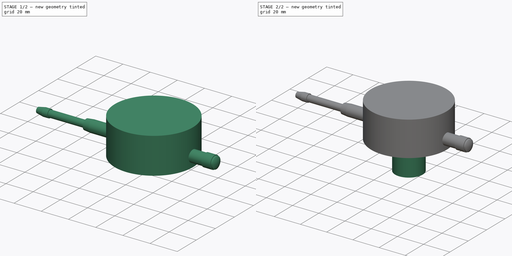
[diagram: build sequence overview — one tinted view per stage of 2, left to right]
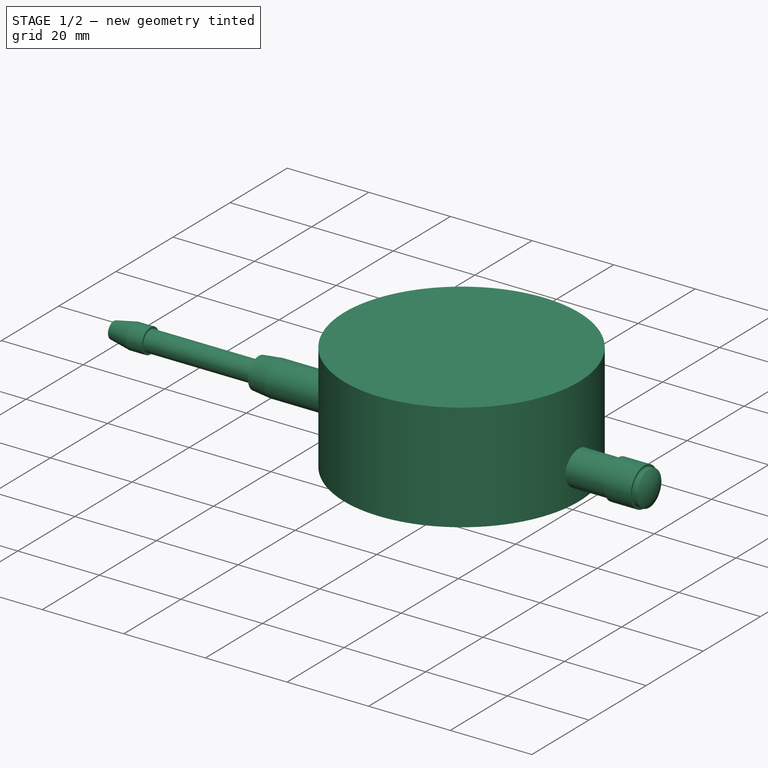
[diagram: stage 1 of 2 — iso view after this stage's code; geometry added in this stage tinted green]
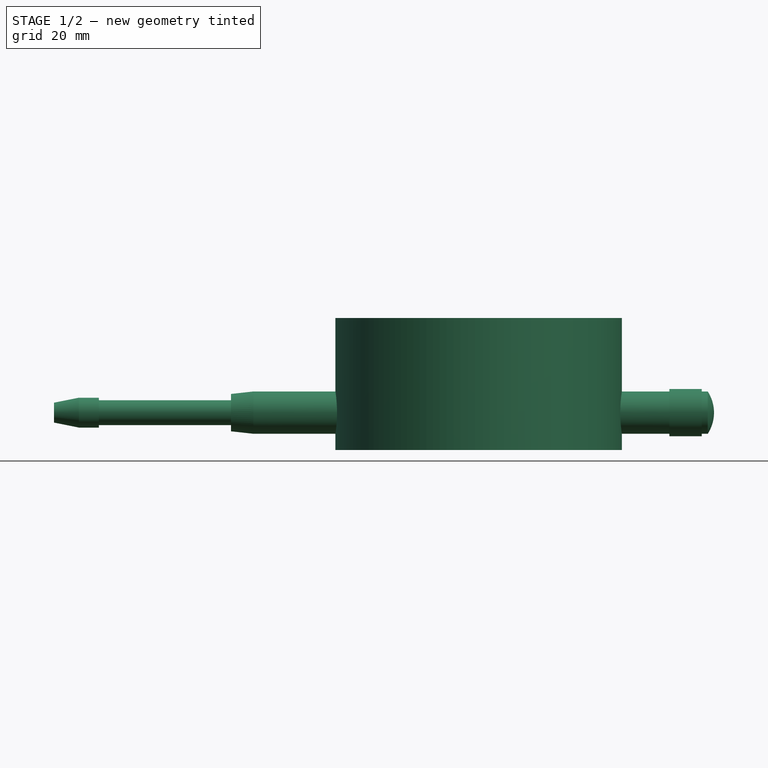
[diagram: stage 1 of 2 — front view after this stage's code; geometry added in this stage tinted green]
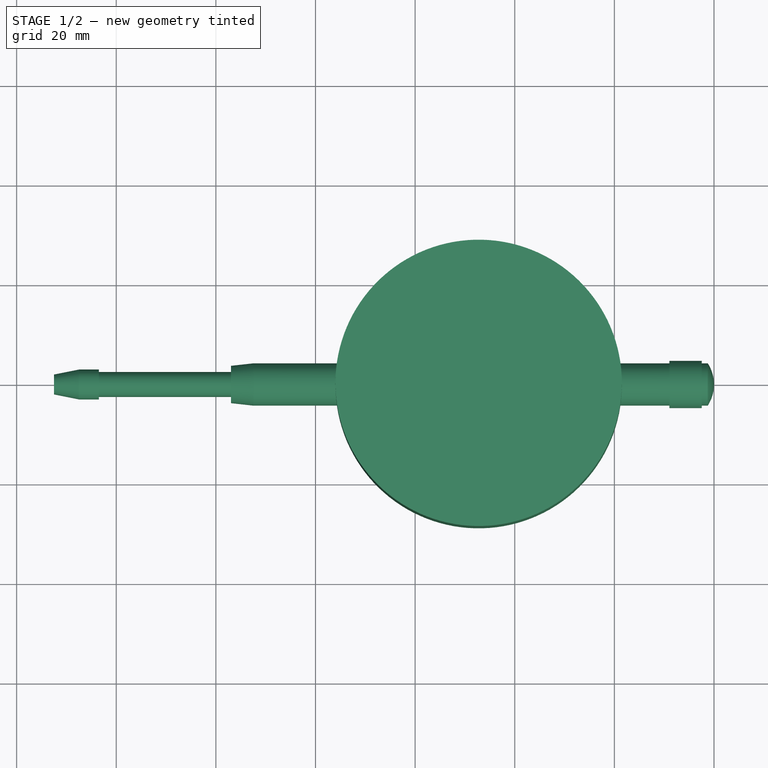
[diagram: stage 1 of 2 — top view after this stage's code; geometry added in this stage tinted green]
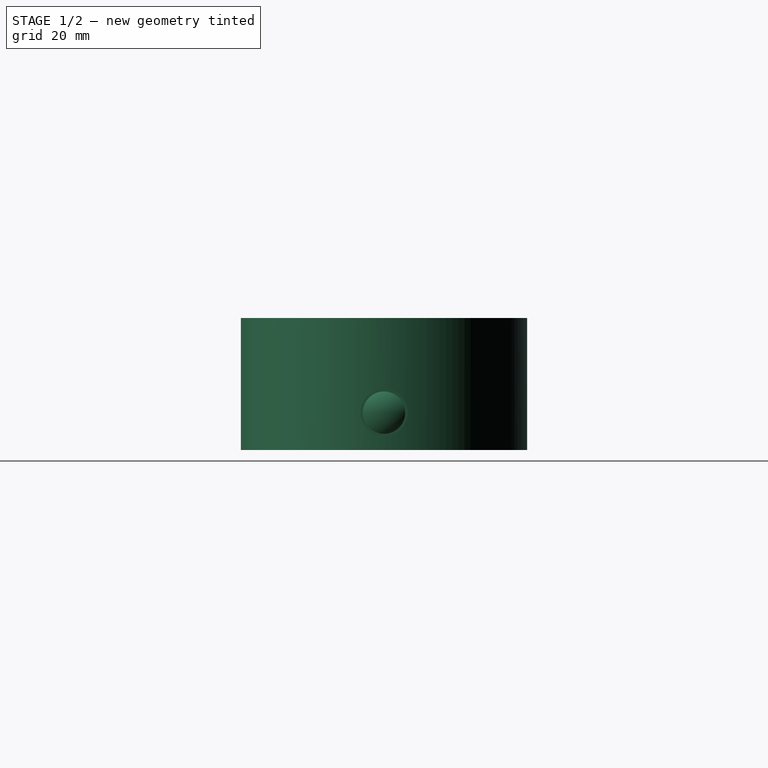
[diagram: stage 1 of 2 — right view after this stage's code; geometry added in this stage tinted green]
FCSTD DOCUMENT  (FreeCAD 0.20R29410 (Git))
Label: dialgauge2
License: All rights reserved
LicenseURL: http://en.wikipedia.org/wiki/All_rights_reserved
objects: Sketcher::SketchObject×3, PartDesign::Pad×2, PartDesign::Revolution×1, PartDesign::Body×1
note: 10 computed .brp shape members not serialized (recipe doc carries the construction recipe); baked Part::Feature solids carry a one-line shape summary decoded from their .brp

FEATURE [Sketcher::SketchObject] Sketch
  FullyConstrained = false
  MapMode = 5
  Placement = pos=(0,0,0) rot=(1,0,0;1.5708rad)
  Support = -> [XZ_Plane]
  sketch-geometry (14):
    g0: LineSegment StartX=-132.5 StartY=0 StartZ=0 EndX=0 EndY=0 EndZ=0
    g1: LineSegment StartX=-1.25317 StartY=4.25 StartZ=0 EndX=-2.46539 EndY=4.25 EndZ=0
    g2: LineSegment StartX=-2.46539 StartY=4.25 StartZ=0 EndX=-2.46539 EndY=4.75 EndZ=0
    g3: LineSegment StartX=-2.46539 StartY=4.75 StartZ=0 EndX=-8.96539 EndY=4.75 EndZ=0
    g4: LineSegment StartX=-8.96539 StartY=4.75 StartZ=0 EndX=-8.96539 EndY=4.25 EndZ=0
    g5: LineSegment StartX=-8.96539 StartY=4.25 StartZ=0 EndX=-92.4654 EndY=4.25 EndZ=0
    g6: LineSegment StartX=-92.4654 StartY=4.25 StartZ=0 EndX=-96.9654 EndY=3.75 EndZ=0
    g7: LineSegment StartX=-96.9654 StartY=3.75 StartZ=0 EndX=-96.9654 EndY=2.5 EndZ=0
    g8: LineSegment StartX=-96.9654 StartY=2.5 StartZ=0 EndX=-123.5 EndY=2.5 EndZ=0
    g9: LineSegment StartX=-123.5 StartY=2.5 StartZ=0 EndX=-123.5 EndY=3 EndZ=0
    g10: LineSegment StartX=-123.5 StartY=3 StartZ=0 EndX=-127.5 EndY=3 EndZ=0
    g11: LineSegment StartX=-127.5 StartY=3 StartZ=0 EndX=-132.5 EndY=2 EndZ=0
    g12: LineSegment StartX=-132.5 StartY=2 StartZ=0 EndX=-132.5 EndY=0 EndZ=0
    g13: ArcOfCircle CenterX=-7.83329 CenterY=0 CenterZ=0 NormalX=0 NormalY=0 NormalZ=1 AngleXU=0 Radius=7.83329 StartAngle=0 EndAngle=0.573477
  constraints (40):
    c: PointOnObject(g0,g-1)
    c: Horizontal(g1)
    c: Coincident(g1,g2)
    c: Vertical(g2)
    c: Coincident(g2,g3)
    c: Horizontal(g3)
    c: Coincident(g3,g4)
    c: Vertical(g4)
    c: Coincident(g4,g5)
    c: Horizontal(g5)
    c: Coincident(g5,g6)
    c: Coincident(g6,g7)
    c: Vertical(g7)
    c: Coincident(g7,g8)
    c: Horizontal(g8)
    c: Coincident(g8,g9)
    c: Vertical(g9)
    c: Coincident(g9,g10)
    c: Horizontal(g10)
    c: Coincident(g10,g11)
    c: Coincident(g11,g12)
    c: Coincident(g12,g0)
    c: Vertical(g12)
    c: DistanceX(g3,g3) = 6.5
    c: DistanceY(g2,g2) = 0.5
    c: Horizontal(g4,g1)
    c: DistanceY(g0,g1) = 4.25
    c: DistanceX(g5,g5) = 83.5
    c: DistanceX(g6,g5) = 4.5
    c: DistanceX(g10,g9) = 4
    c: DistanceX(g11,g10) = 5
    c: DistanceY(g0,g11) = 2
    c: DistanceY(g7,g6) = 1.25
    c: DistanceY(g0,g8) = 2.5
    c: DistanceY(g8,g9) = 0.5
    c: Coincident(g0,g-1)
    c: DistanceX(g0,g0) = 132.5
    c: Coincident(g13,g0)
    c: Coincident(g13,g1)
    c: PointOnObject(g13,g0)
FEATURE [PartDesign::Revolution] Revolution
  Angle = 360
  Axis = (1,0,0)
  Base = (0,0,0)
  Placement = pos=(0,0,0) rot=(1,0,0;1.5708rad)
  Profile = -> Sketch
  ReferenceAxis = -> Sketch [H_Axis]
FEATURE [Sketcher::SketchObject] Sketch002  label="Sketch001"
  AttachmentOffset = pos=(0,0,-7.5) rot=(0,0,1;0rad)
  FullyConstrained = false
  MapMode = 5
  Placement = pos=(0,0,-7.5) rot=(0,0,1;0rad)
  Support = -> [XY_Plane]
  sketch-geometry (2):
    g0: Circle CenterX=-47.25 CenterY=0 CenterZ=0 NormalX=0 NormalY=0 NormalZ=1 AngleXU=0 Radius=28.75
    g1: LineSegment StartX=-18.5 StartY=65.1159 StartZ=0 EndX=-18.5 EndY=-72.6335 EndZ=0
  constraints (5):
    c: PointOnObject(g0,g-1)
    c: Diameter(g0) = 57.5
    c: Vertical(g1)
    c: DistanceX(g1,g-1) = 18.5
    c: Tangent(g0,g1)
FEATURE [PartDesign::Pad] Pad
  BaseFeature = -> Revolution
  Direction = (0,0,1)
  Length = 26.5
  Length2 = 10
  Placement = pos=(0,0,0) rot=(1,0,0;1.5708rad)
  Profile = -> Sketch002
  ReferenceAxis = -> Sketch002 [N_Axis]
  Type = 0
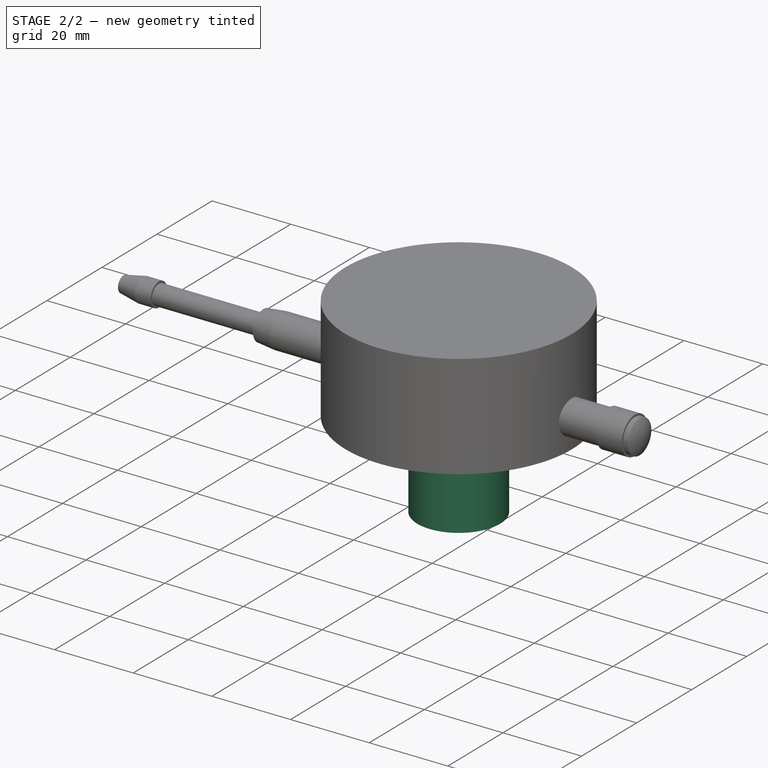
[diagram: stage 2 of 2 — iso view after this stage's code; geometry added in this stage tinted green]
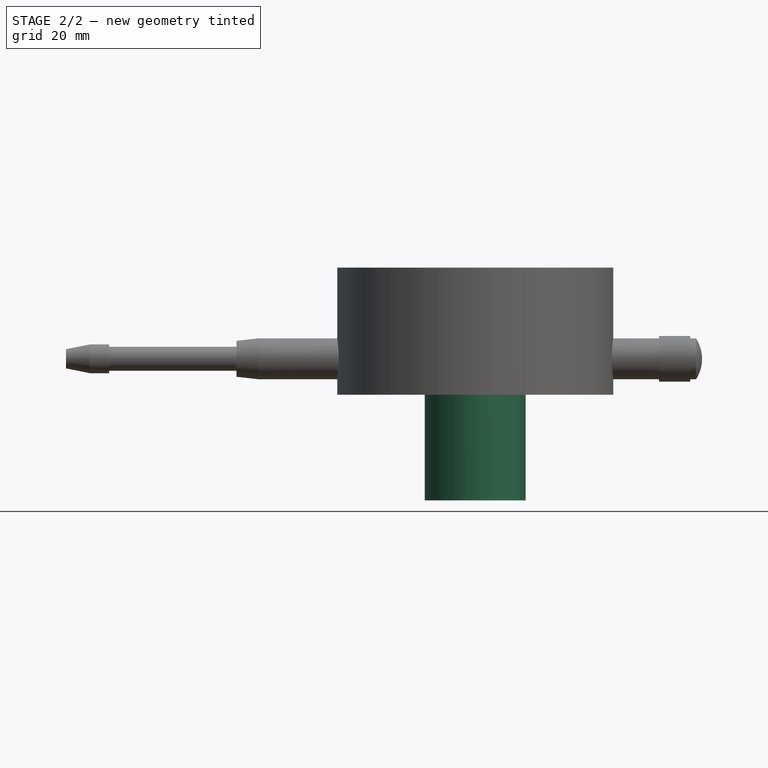
[diagram: stage 2 of 2 — front view after this stage's code; geometry added in this stage tinted green]
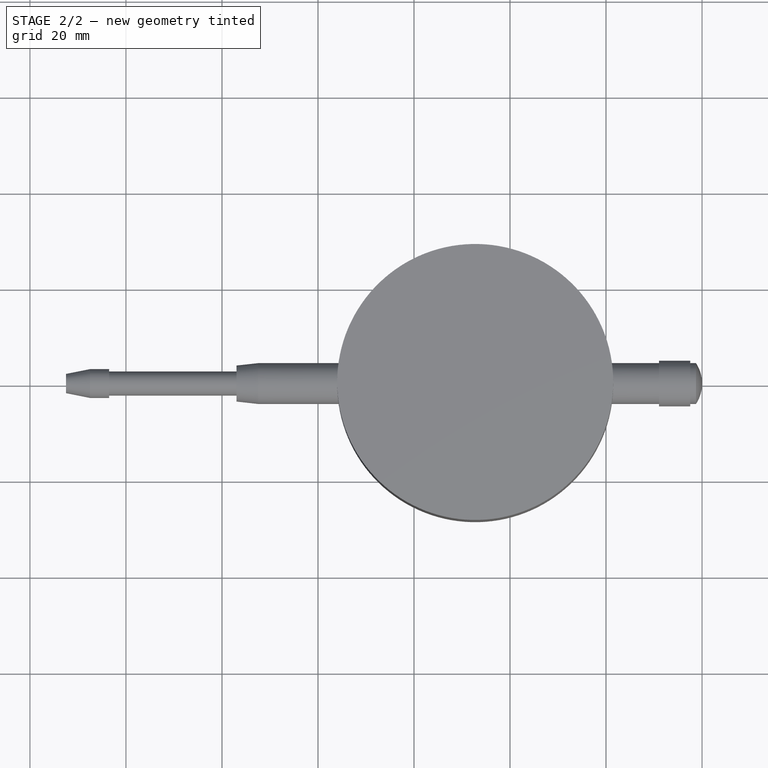
[diagram: stage 2 of 2 — top view after this stage's code; geometry added in this stage tinted green]
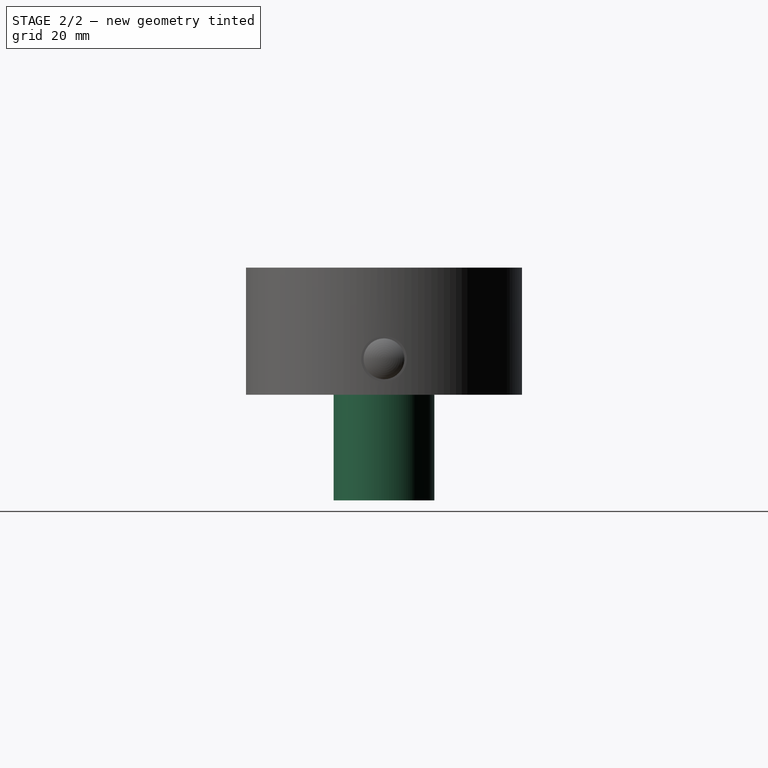
[diagram: stage 2 of 2 — right view after this stage's code; geometry added in this stage tinted green]
FEATURE [Sketcher::SketchObject] Sketch003
  AttachmentOffset = pos=(0,0,-7.5) rot=(0,0,1;0rad)
  FullyConstrained = false
  MapMode = 5
  Placement = pos=(0,0,-7.5) rot=(0,0,1;0rad)
  Support = -> [XY_Plane]
  expr: Constraints[5] = 57.5 / 2
  sketch-geometry (3):
    g0: Circle CenterX=-47.25 CenterY=0 CenterZ=0 NormalX=0 NormalY=0 NormalZ=1 AngleXU=0 Radius=10.5
    g1: LineSegment StartX=-18.5 StartY=67.183 StartZ=0 EndX=-18.5 EndY=-74.252 EndZ=0
    g2: LineSegment StartX=-47.25 StartY=64.4188 StartZ=0 EndX=-47.25 EndY=-65.9594 EndZ=0
  constraints (7):
    c: Diameter(g0) = 21
    c: PointOnObject(g0,g-1)
    c: Vertical(g1)
    c: DistanceX(g1,g-1) = 18.5
    c: Vertical(g2)
    c: DistanceX(g2,g1) = 28.75
    c: PointOnObject(g0,g2)
FEATURE [PartDesign::Pad] Pad001
  BaseFeature = -> Pad
  Direction = (0,0,1)
  Length = 22
  Length2 = 10
  Placement = pos=(0,0,0) rot=(1,0,0;1.5708rad)
  Profile = -> Sketch003
  ReferenceAxis = -> Sketch003 [N_Axis]
  Reversed = true
  Type = 0
FEATURE [PartDesign::Body] Body
  Group = -> [Sketch,Revolution,Sketch002,Pad,Sketch003,Pad001]
  Origin = -> Origin
  Tip = -> Pad001
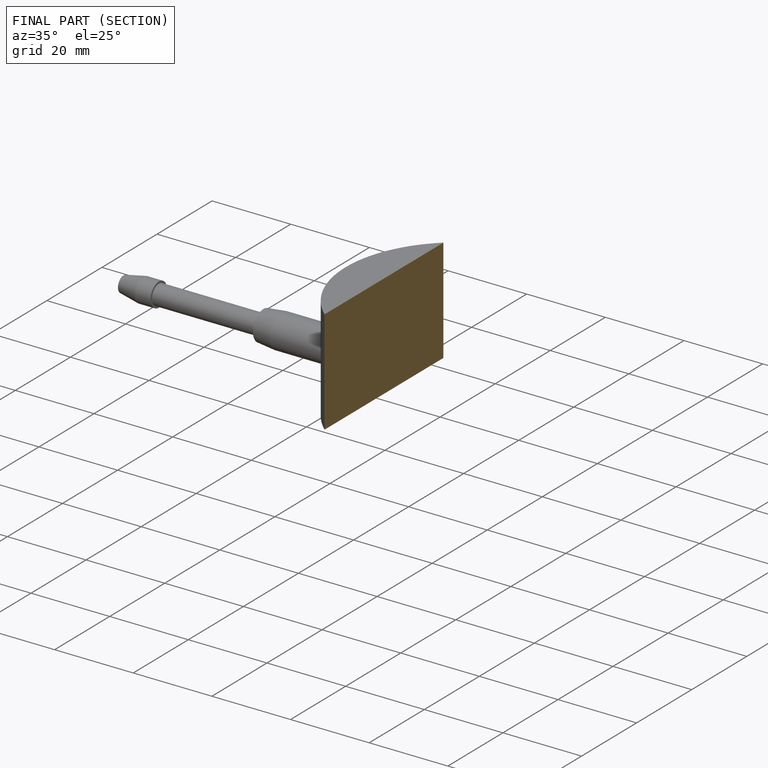
[diagram: finished part — half-section view (interior)]
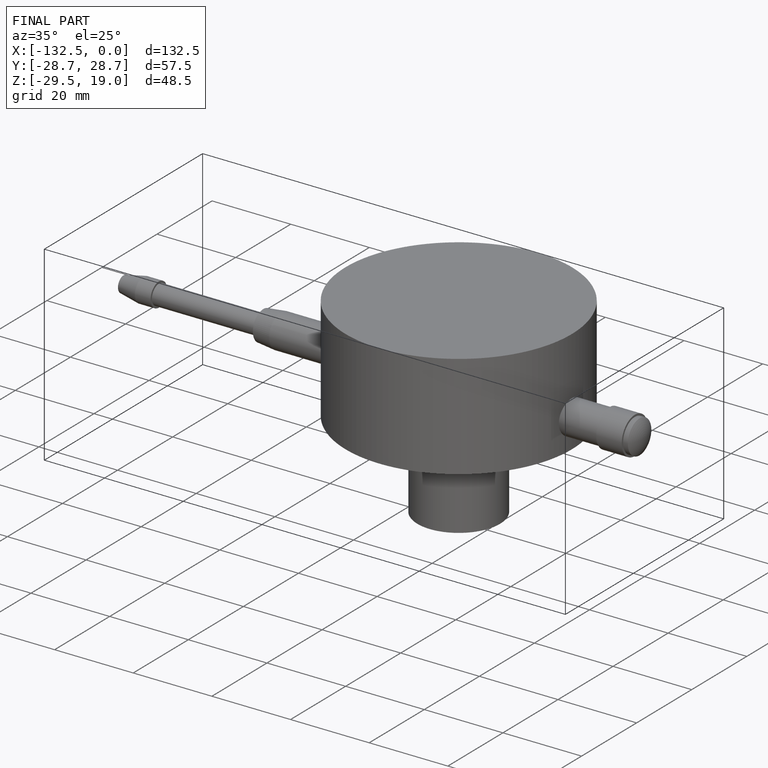
[diagram: finished part — iso view with bounding-box wireframe]
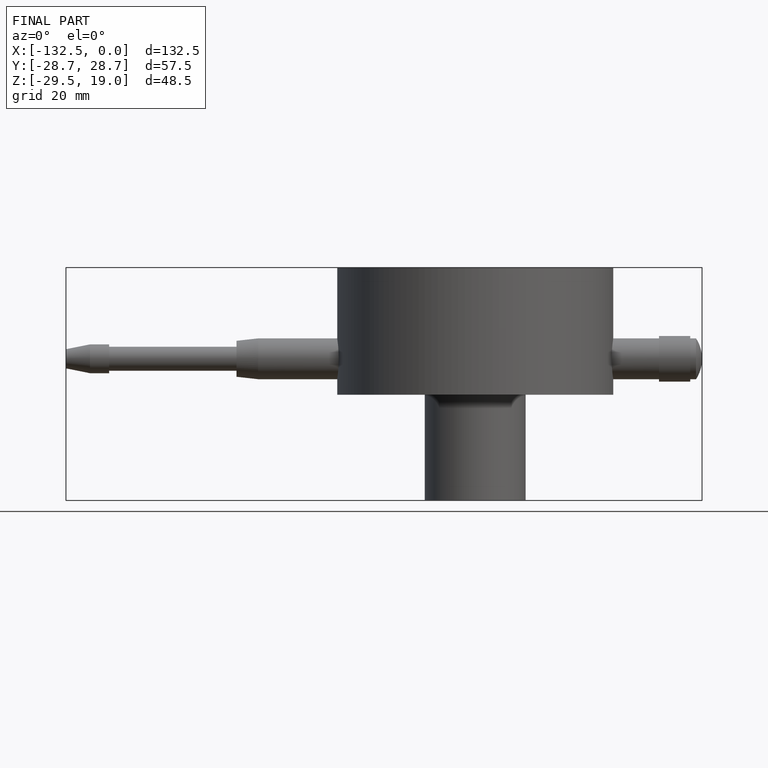
[diagram: finished part — front view with bounding-box wireframe]
